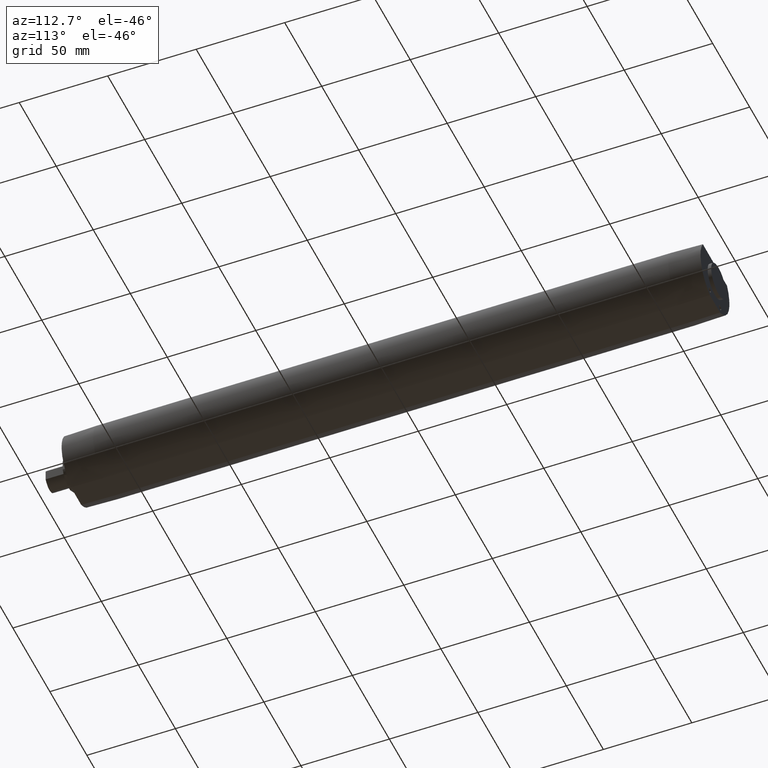
[diagram: clean part render]
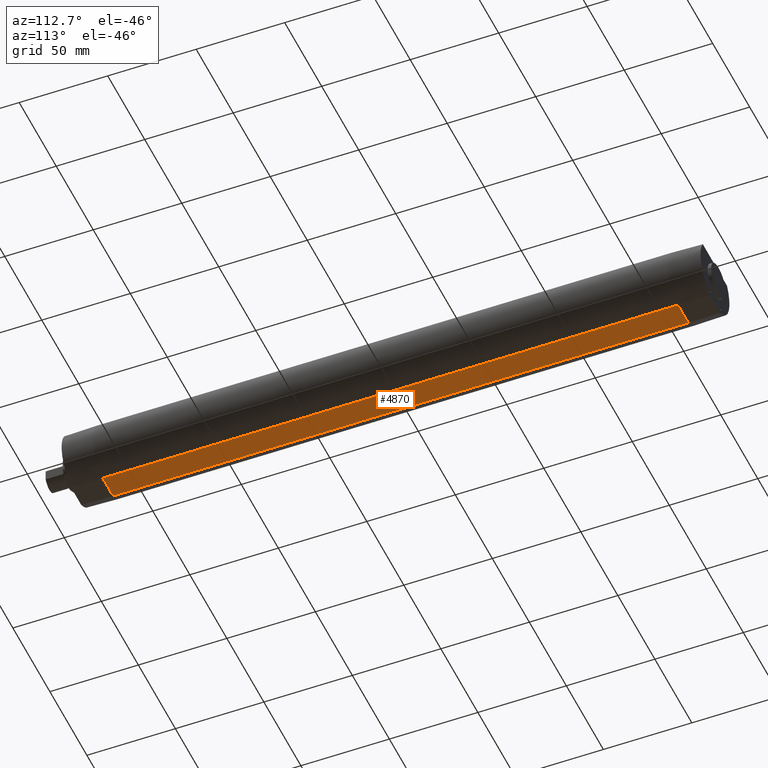
[diagram: same view with one face highlighted and labeled with its STEP entity id]
A machine part, auxiliary view. The second image highlights one B-rep face of the part: STEP entity #4870.
In plain terms, the highlighted planar face has unit normal (0, 0, -1).
Its self-contained STEP definition (entity closure, byte-faithful):
#2510=CARTESIAN_POINT('',(6.95970545353754,-18.75,162.5));
#2520=VERTEX_POINT('',#2510);
#2900=CARTESIAN_POINT('',(6.95970545353752,-18.75,-162.5));
#2910=VERTEX_POINT('',#2900);
#2940=CARTESIAN_POINT('',(6.95970545353754,-18.75,162.5));
#2950=DIRECTION('',(0.,0.,-1.));
#2960=VECTOR('',#2950,1.);
#2970=LINE('',#2940,#2960);
#2980=EDGE_CURVE('',#2520,#2910,#2970,.T.);
#4050=CARTESIAN_POINT('',(-6.95970545353755,-18.75,-162.5));
#4060=VERTEX_POINT('',#4050);
#4460=CARTESIAN_POINT('',(-6.95970545353754,-18.75,162.5));
#4470=VERTEX_POINT('',#4460);
#4500=CARTESIAN_POINT('',(-6.95970545353755,-18.75,-162.5));
#4510=DIRECTION('',(0.,0.,1.));
#4520=VECTOR('',#4510,1.);
#4530=LINE('',#4500,#4520);
#4540=EDGE_CURVE('',#4060,#4470,#4530,.T.);
#4660=CARTESIAN_POINT('',(-6.95970545353754,-18.75,-162.5));
#4670=DIRECTION('',(0.,-1.,0.));
#4680=DIRECTION('',(0.,0.,-1.));
#4690=AXIS2_PLACEMENT_3D('',#4660,#4670,#4680);
#4700=PLANE('',#4690);
#4710=CARTESIAN_POINT('',(-6.95970545353754,-18.75,-162.5));
#4720=DIRECTION('',(1.,0.,0.));
#4730=VECTOR('',#4720,1.);
#4740=LINE('',#4710,#4730);
#4750=EDGE_CURVE('',#4060,#2910,#4740,.T.);
#4760=ORIENTED_EDGE('',*,*,#4750,.T.);
#4770=ORIENTED_EDGE('',*,*,#4540,.F.);
#4780=CARTESIAN_POINT('',(6.95970545353754,-18.75,162.5));
#4790=DIRECTION('',(-1.,0.,0.));
#4800=VECTOR('',#4790,1.);
#4810=LINE('',#4780,#4800);
#4820=EDGE_CURVE('',#2520,#4470,#4810,.T.);
#4830=ORIENTED_EDGE('',*,*,#4820,.T.);
#4840=ORIENTED_EDGE('',*,*,#2980,.F.);
#4850=EDGE_LOOP('',(#4840,#4830,#4770,#4760));
#4860=FACE_OUTER_BOUND('',#4850,.T.);
#4870=ADVANCED_FACE('',(#4860),#4700,.T.);